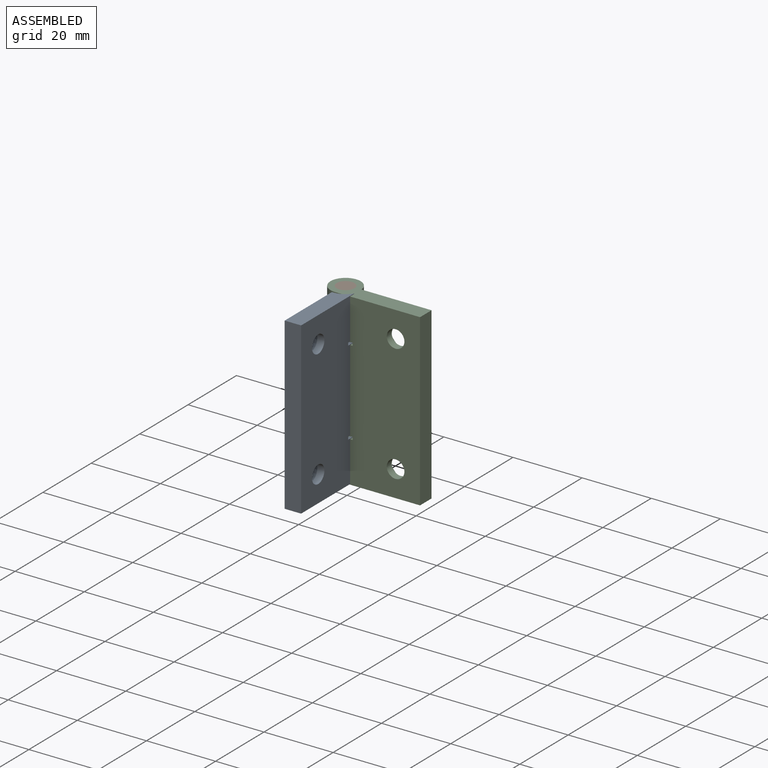
[diagram: assembled view]
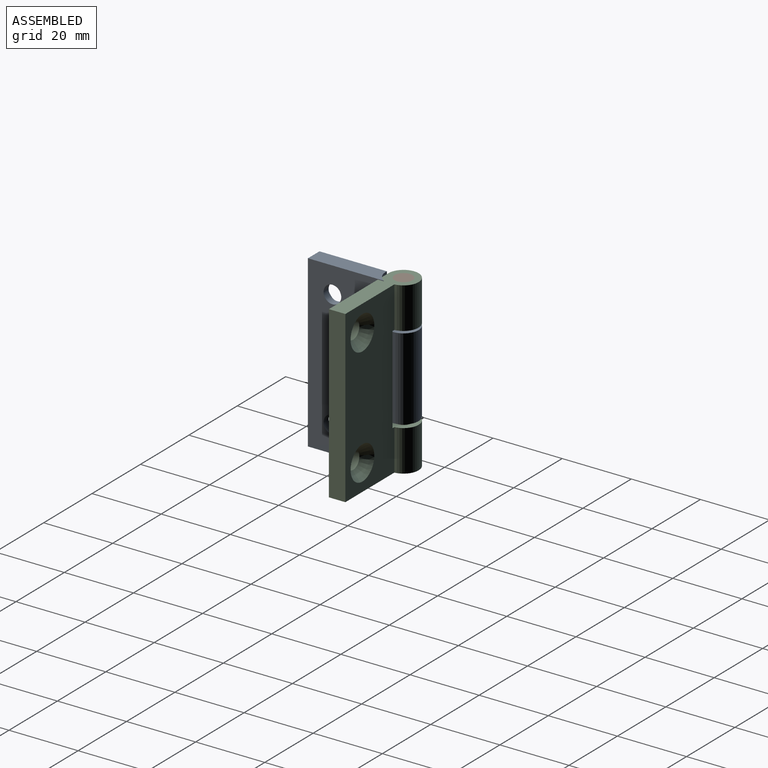
[diagram: assembled view, second angle]
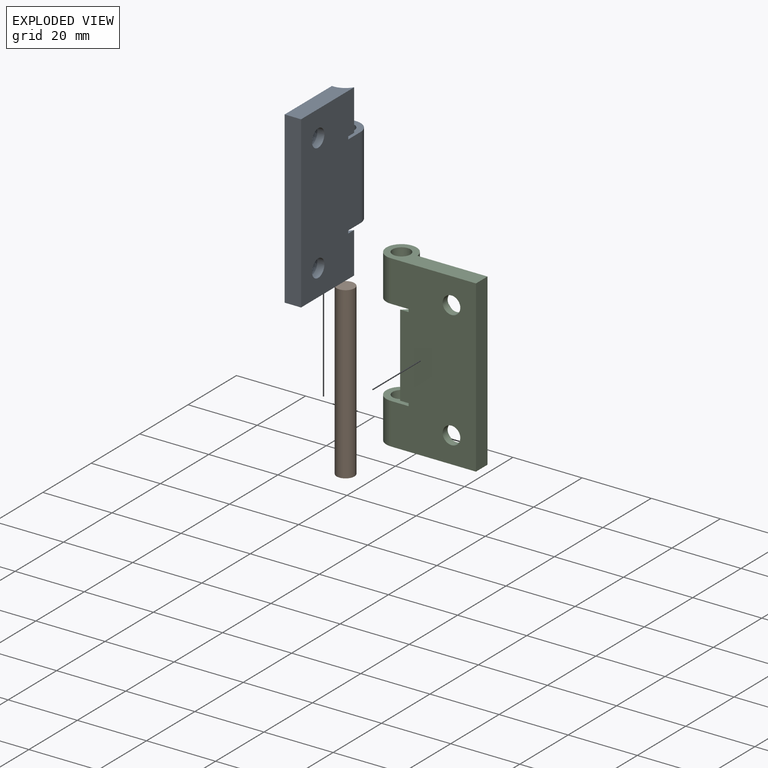
[diagram: exploded view]
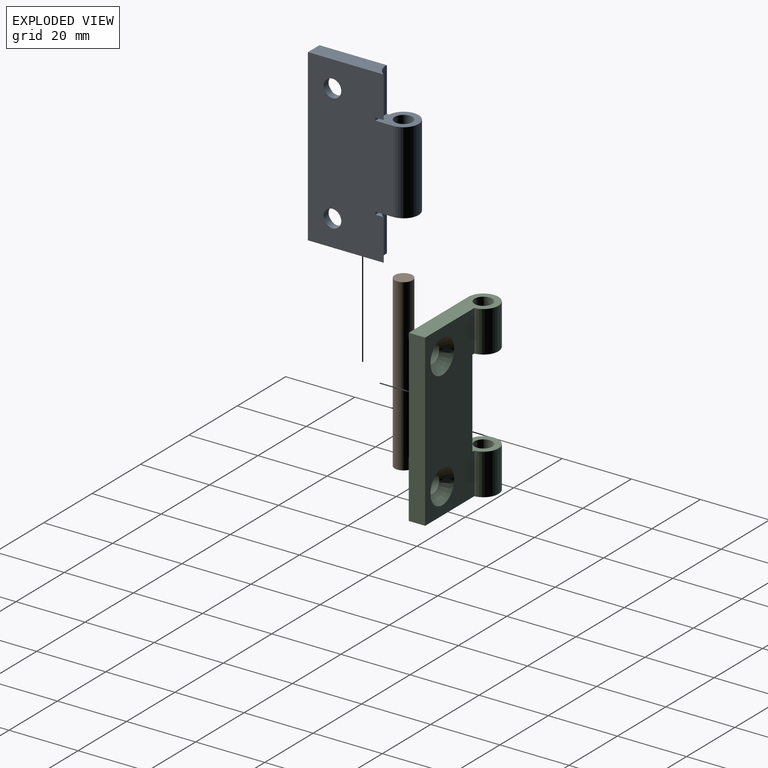
[diagram: exploded view, second angle]
ASSEMBLY  parts=3 mates=2
PART A: 19 faces, bbox 29x8.7x49.2 mm
  f0: cylinder r=2.55mm len=5.11mm, axis (0,1,0), area 33.1mm2, adj f1,f15
  f1: cone r=4.89mm half-angle=41deg, axis (0,1,0), area 83.3mm2, adj f0,f11
  f2: cylinder r=2.55mm len=5.11mm, axis (0,1,0), area 33.1mm2, adj f3,f15
  f3: cone r=4.89mm half-angle=41deg, axis (0,1,0), area 83.3mm2, adj f2,f11
  f4: cylinder r=2.58mm len=23.81mm, axis (0,0,-1), area 386mm2, adj f12,f16
  f5: cylinder r=5.13mm len=12.7mm, axis (0,0,-1), area 67.4mm2, adj f6,f7,f8,f11,f15,f16
  f6: plane 3.98x0.79mm, normal (1,0,0), area 3.2mm2, adj f5,f7,f15,f16
  f7: plane 3.98x2.43mm, normal (0,0,1), area 3.1mm2, adj f5,f6,f15
  f8: plane 21.92x4.75mm, normal (0,0,-1), area 95.7mm2, adj f5,f9,f11,f15
  f9: plane 49.21x4.75mm, normal (-1,0,0), area 233.7mm2, adj f8,f10,f11,f15
  f10: plane 21.92x4.75mm, normal (0,0,1), area 95.7mm2, adj f9,f11,f14,f15
  f11: plane 49.21x20.26mm, normal (0,1,0), area 827.4mm2, adj f1,f3,f5,f8,f9,f10,f12,f13
  f12: plane 9.49x8.73mm, normal (0,0,1), area 46.6mm2, adj f4,f11,f13,f14,f15,f18
  f13: cylinder r=4.37mm len=23.81mm, axis (0,0,-1), area 480.7mm2, adj f11,f12,f15,f16
  f14: cylinder r=5.13mm len=12.7mm, axis (0,0,1), area 67.4mm2, adj f10,f11,f12,f15,f17,f18
  f15: plane 49.21x24.61mm, normal (0,-1,0), area 1097.9mm2, adj f0,f2,f5,f6,f7,f8,f9,f10
  f16: plane 9.49x8.73mm, normal (0,0,-1), area 46.6mm2, adj f4,f5,f6,f11,f13,f15
  f17: plane 3.98x2.43mm, normal (0,0,-1), area 3.1mm2, adj f14,f15,f18
  f18: plane 3.98x0.79mm, normal (1,0,0), area 3.2mm2, adj f12,f14,f15,f17
PART B: 3 faces, bbox 5.2x5.2x49.2 mm
  f0: cylinder r=2.58mm len=49.21mm, axis (0,0,-1), area 797.7mm2, adj f1,f2
  f1: plane 5.16x5.16mm, normal (0,0,1), area 20.9mm2, adj f0
  f2: plane 5.16x5.16mm, normal (0,0,-1), area 20.9mm2, adj f0
PART C: 20 faces, bbox 29x8.7x49.2 mm
  f0: cylinder r=2.55mm len=5.11mm, axis (0,1,0), area 33.1mm2, adj f1,f9
  f1: cone r=4.89mm half-angle=41deg, axis (0,1,0), area 83.3mm2, adj f0,f11
  f2: cylinder r=2.55mm len=5.11mm, axis (0,1,0), area 33.1mm2, adj f3,f9
  f3: cone r=4.89mm half-angle=41deg, axis (0,1,0), area 83.3mm2, adj f2,f11
  f4: cylinder r=2.58mm len=11.91mm, axis (0,0,-1), area 193mm2, adj f12,f15
  f5: cylinder r=4.37mm len=11.91mm, axis (0,0,-1), area 240.4mm2, adj f9,f11,f12,f15
  f6: cylinder r=5.13mm len=25.4mm, axis (0,0,1), area 134.8mm2, adj f9,f10,f11,f15,f16,f17,f18,f19
  f7: cylinder r=2.58mm len=11.91mm, axis (0,0,-1), area 193mm2, adj f10,f13
  f8: cylinder r=4.37mm len=11.91mm, axis (0,0,-1), area 240.4mm2, adj f9,f10,f11,f13
  f9: plane 49.21x24.61mm, normal (0,-1,0), area 1097.9mm2, adj f0,f2,f5,f6,f8,f10,f12,f13
  f10: plane 9.49x8.73mm, normal (0,0,-1), area 46.6mm2, adj f6,f7,f8,f9,f11,f19
  f11: plane 49.21x20.26mm, normal (0,1,0), area 827.4mm2, adj f1,f3,f5,f6,f8,f10,f12,f13
  f12: plane 28.97x8.73mm, normal (0,0,-1), area 139.2mm2, adj f4,f5,f9,f11,f14
  f13: plane 28.97x8.73mm, normal (0,0,1), area 139.2mm2, adj f7,f8,f9,f11,f14
  f14: plane 49.21x4.75mm, normal (1,0,0), area 233.7mm2, adj f9,f11,f12,f13
  f15: plane 9.49x8.73mm, normal (0,0,1), area 46.6mm2, adj f4,f5,f6,f9,f11,f17
  f16: plane 3.98x2.43mm, normal (0,0,-1), area 3.1mm2, adj f6,f9,f17
  f17: plane 3.98x0.79mm, normal (-1,0,0), area 3.2mm2, adj f6,f9,f15,f16
  f18: plane 3.98x2.43mm, normal (0,0,1), area 3.1mm2, adj f6,f9,f19
  f19: plane 3.98x0.79mm, normal (-1,0,0), area 3.2mm2, adj f6,f9,f10,f18
PLACE A rot(axis=(0,0,1),90deg) t=(2.28,-3.31,0.16)mm
PLACE B t=(-2.08,-7.68,0)mm
PLACE C t=(-2.08,-7.68,0)mm fixed
MATE fastened C.f4 <-> B.f0  axis (0,0,1) through (-2.08,-3.31,24.61)mm
MATE revolute A.f4 <-> C.f4  axis (0,0,1) through (-2.08,-3.31,12.06)mm
